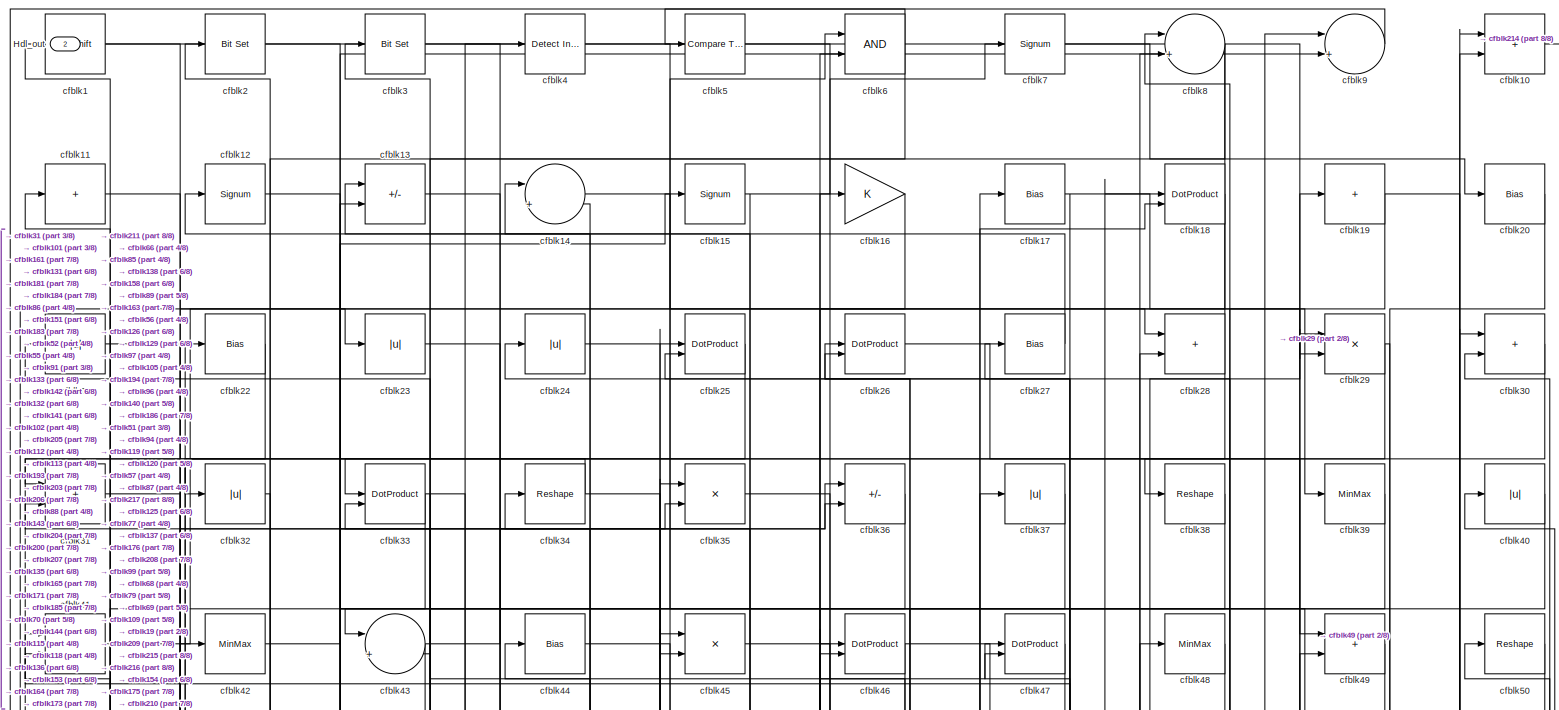
[diagram: root canvas - part 1/8, full width, top band]
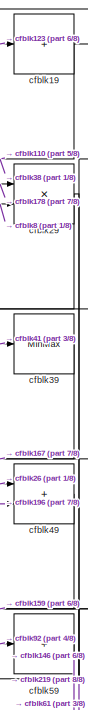
[diagram: root canvas - part 2/8, top right region]
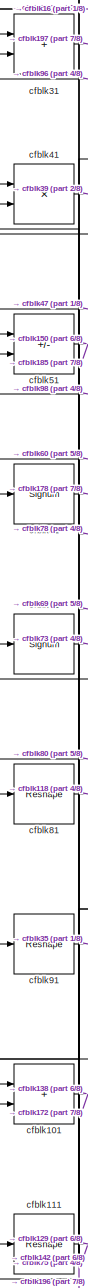
[diagram: root canvas - part 3/8, middle left region]
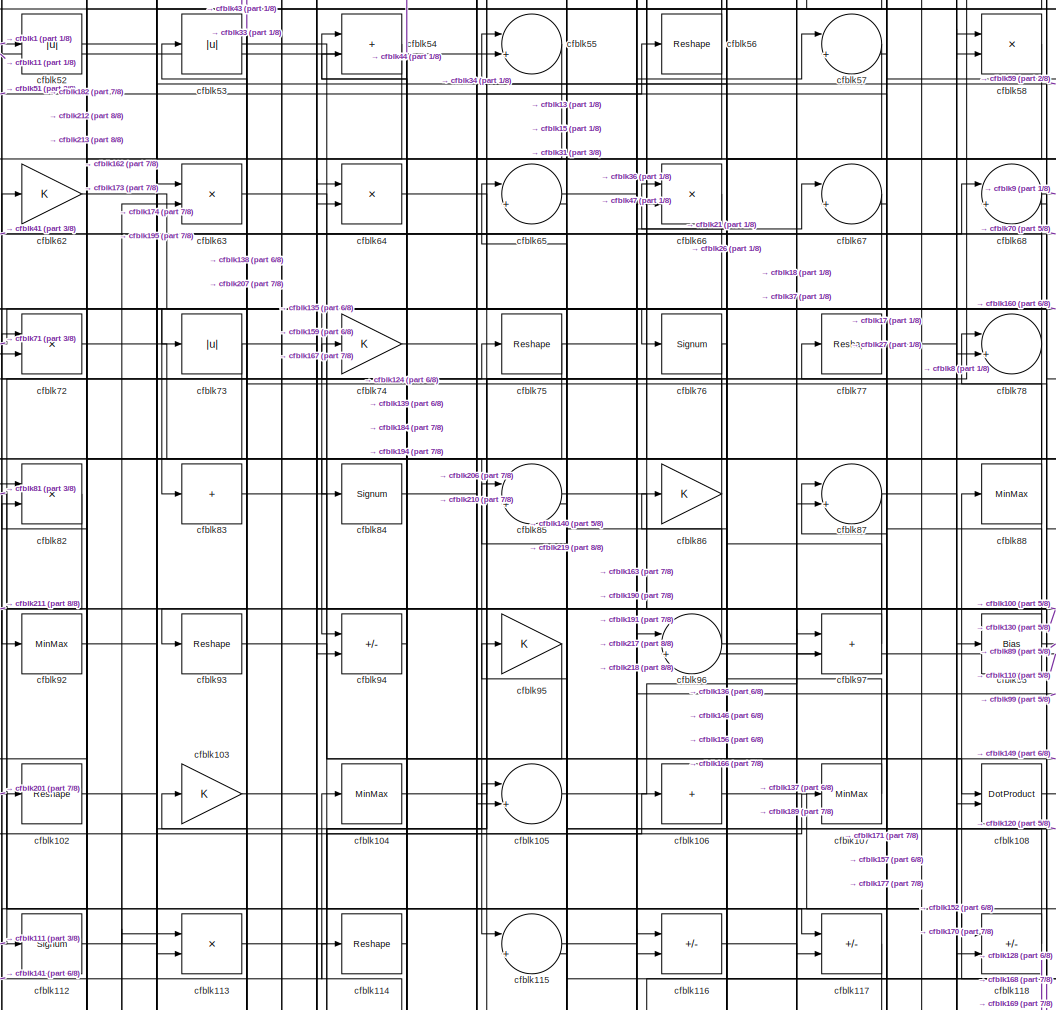
[diagram: root canvas - part 4/8, central region]
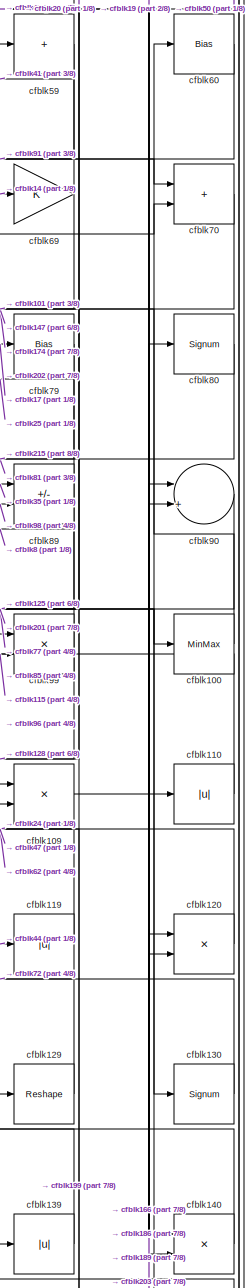
[diagram: root canvas - part 5/8, middle right region]
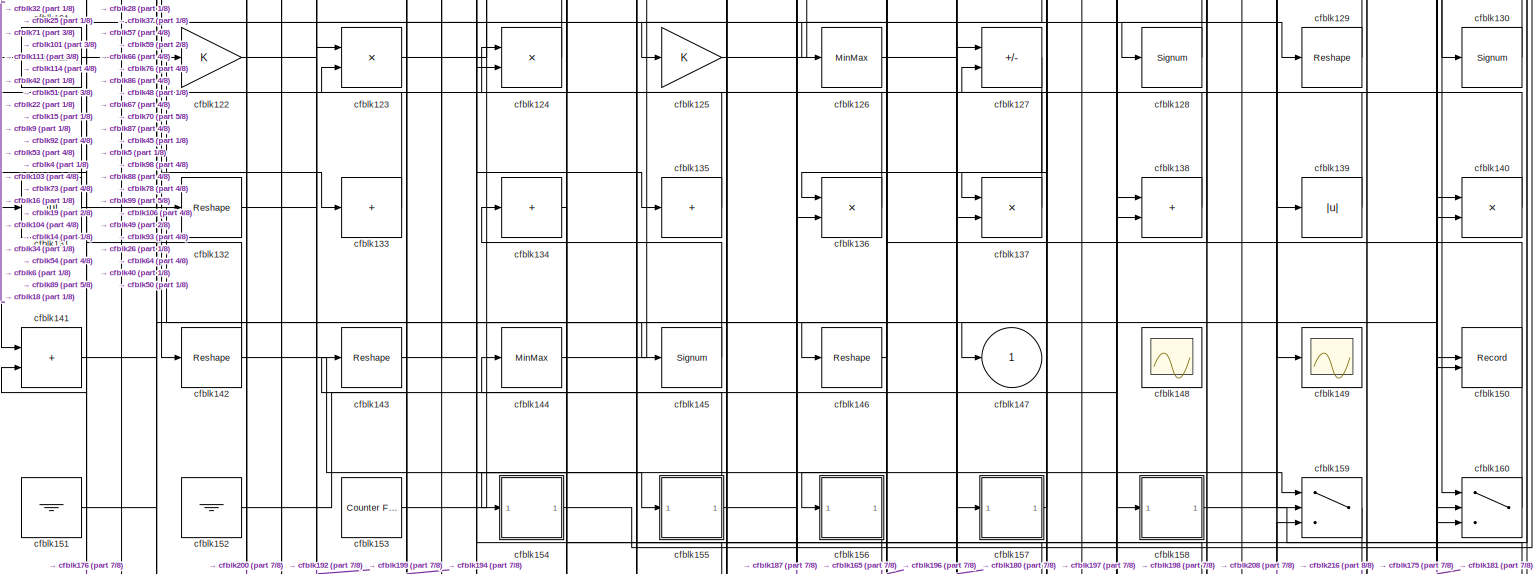
[diagram: root canvas - part 6/8, full width, middle band]
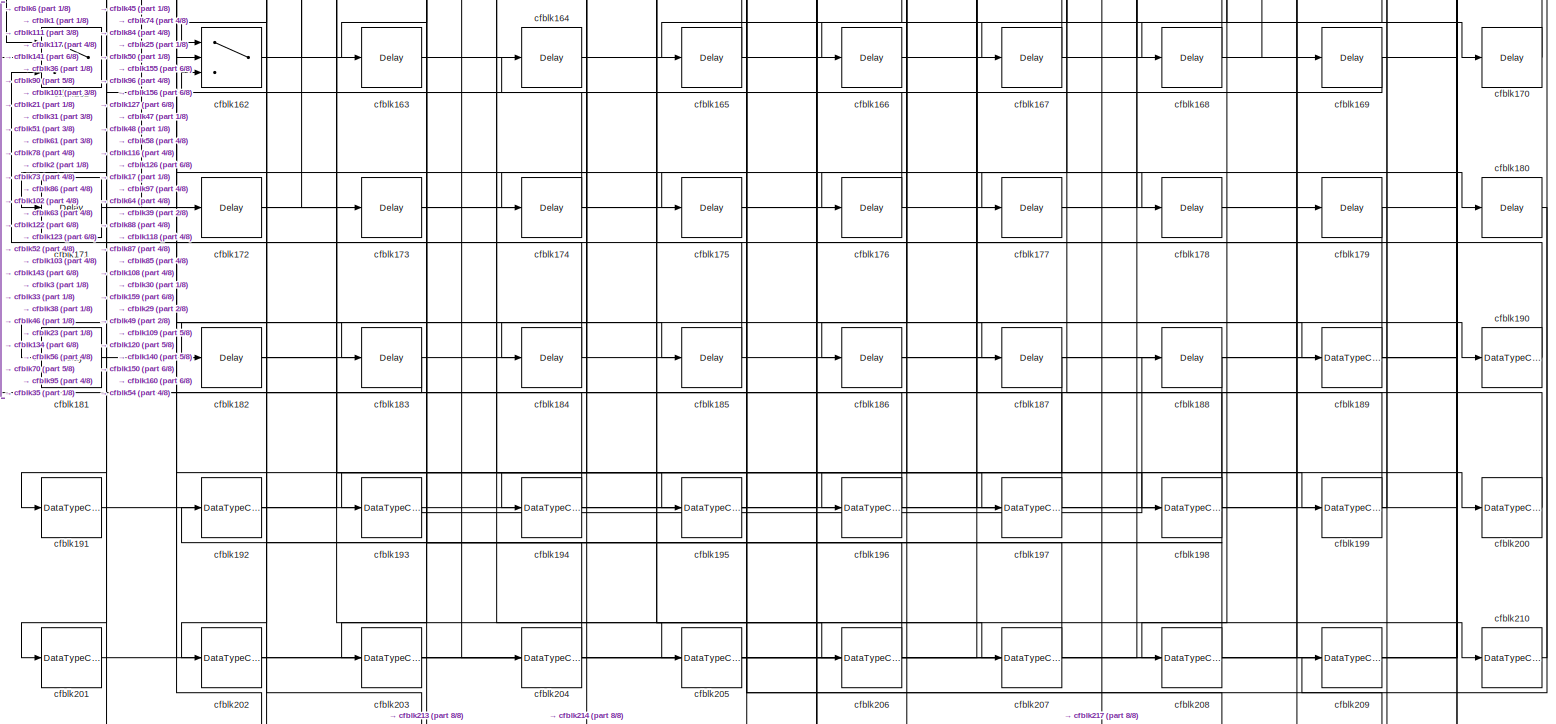
[diagram: root canvas - part 7/8, full width, bottom band]
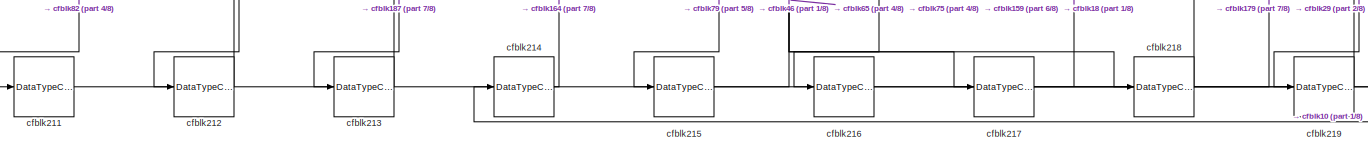
[diagram: root canvas - part 8/8, full width, bottom band]
MODEL slx_77c5e68a5595
KIND model
CONFIG AbsTol = auto
CONFIG EnableMultiTasking = off
CONFIG FixedStep = auto
CONFIG MaxStep = auto
CONFIG MinStep = auto
CONFIG RelTol = 1e-3
CONFIG SampleTimeConstraint = Unconstrained
CONFIG SolverName = VariableStepAuto
CONFIG StartTime = 0.0
CONFIG StopTime = 10.0
BLOCK [Outport] Hdl_out
  OutDataTypeStr = uint8
  Port = 2
BLOCK [Reference] cfblk1  REF=hdlsllib/Logic and Bit
Operations/Bit Shift
  SourceBlock = hdlsllib/Logic and Bit\nOperations/Bit Shift
  SourceType = Bit Shift
BLOCK [Sum] cfblk10
  IconShape = rectangular
  OutDataTypeStr = uint8
BLOCK [MinMax] cfblk100
  OutDataTypeStr = uint8
BLOCK [Sum] cfblk101
  IconShape = rectangular
  OutDataTypeStr = uint8
BLOCK [Reshape] cfblk102
BLOCK [Gain] cfblk103
  OutDataTypeStr = uint8
BLOCK [MinMax] cfblk104
  OutDataTypeStr = uint8
BLOCK [Sum] cfblk105
  Inputs = |++
  OutDataTypeStr = uint8
BLOCK [Sum] cfblk106
  IconShape = rectangular
  Inputs = +
  OutDataTypeStr = uint8
BLOCK [MinMax] cfblk107
  OutDataTypeStr = uint8
BLOCK [DotProduct] cfblk108
  OutDataTypeStr = uint8
BLOCK [Product] cfblk109
  Inputs = */
  OutDataTypeStr = uint8
  RndMeth = Zero
  SaturateOnIntegerOverflow = on
BLOCK [Sum] cfblk11
  IconShape = rectangular
  Inputs = +
  OutDataTypeStr = uint8
BLOCK [Abs] cfblk110
  OutDataTypeStr = uint8
  SaturateOnIntegerOverflow = off
BLOCK [Reshape] cfblk111
BLOCK [Signum] cfblk112
BLOCK [Product] cfblk113
  Inputs = */
  OutDataTypeStr = uint8
  RndMeth = Zero
  SaturateOnIntegerOverflow = on
BLOCK [Reshape] cfblk114
BLOCK [Sum] cfblk115
  Inputs = |++
  OutDataTypeStr = uint8
BLOCK [Sum] cfblk116
  IconShape = rectangular
  Inputs = +-
  OutDataTypeStr = uint8
BLOCK [Sum] cfblk117
  IconShape = rectangular
  Inputs = +-
  OutDataTypeStr = uint8
BLOCK [Sum] cfblk118
  IconShape = rectangular
  Inputs = +-
  OutDataTypeStr = uint8
BLOCK [Abs] cfblk119
  OutDataTypeStr = uint8
  SaturateOnIntegerOverflow = off
BLOCK [Signum] cfblk12
BLOCK [Product] cfblk120
  Inputs = */
  OutDataTypeStr = uint8
  RndMeth = Zero
  SaturateOnIntegerOverflow = on
BLOCK [MinMax] cfblk121
  OutDataTypeStr = uint8
BLOCK [Gain] cfblk122
  OutDataTypeStr = uint8
BLOCK [Product] cfblk123
  Inputs = */
  OutDataTypeStr = uint8
  RndMeth = Zero
  SaturateOnIntegerOverflow = on
BLOCK [Product] cfblk124
  Inputs = */
  OutDataTypeStr = uint8
  RndMeth = Zero
  SaturateOnIntegerOverflow = on
BLOCK [Gain] cfblk125
  OutDataTypeStr = uint8
BLOCK [MinMax] cfblk126
  OutDataTypeStr = uint8
BLOCK [Sum] cfblk127
  IconShape = rectangular
  Inputs = +-
  OutDataTypeStr = uint8
BLOCK [Signum] cfblk128
BLOCK [Reshape] cfblk129
BLOCK [Sum] cfblk13
  IconShape = rectangular
  Inputs = +-
  OutDataTypeStr = uint8
BLOCK [Signum] cfblk130
BLOCK [Abs] cfblk131
  OutDataTypeStr = uint8
  SaturateOnIntegerOverflow = off
BLOCK [Reshape] cfblk132
BLOCK [Sum] cfblk133
  IconShape = rectangular
  Inputs = +
  OutDataTypeStr = uint8
BLOCK [Sum] cfblk134
  IconShape = rectangular
  Inputs = +
  OutDataTypeStr = uint8
BLOCK [Sum] cfblk135
  IconShape = rectangular
  Inputs = +
  OutDataTypeStr = uint8
BLOCK [Product] cfblk136
  Inputs = */
  OutDataTypeStr = uint8
  RndMeth = Zero
  SaturateOnIntegerOverflow = on
BLOCK [Product] cfblk137
  Inputs = */
  OutDataTypeStr = uint8
  RndMeth = Zero
  SaturateOnIntegerOverflow = on
BLOCK [Sum] cfblk138
  IconShape = rectangular
  OutDataTypeStr = uint8
BLOCK [Abs] cfblk139
  OutDataTypeStr = uint8
  SaturateOnIntegerOverflow = off
BLOCK [Sum] cfblk14
  Inputs = |++
  OutDataTypeStr = uint8
BLOCK [Product] cfblk140
  Inputs = */
  OutDataTypeStr = uint8
  RndMeth = Zero
  SaturateOnIntegerOverflow = on
BLOCK [Sum] cfblk141
  IconShape = rectangular
  OutDataTypeStr = uint8
BLOCK [Reshape] cfblk142
BLOCK [Reshape] cfblk143
BLOCK [MinMax] cfblk144
  OutDataTypeStr = uint8
BLOCK [Signum] cfblk145
BLOCK [Reshape] cfblk146
BLOCK [Outport] cfblk147
  OutDataTypeStr = uint8
  VectorParamsAs1DForOutWhenUnconnected = off
BLOCK [Scope] cfblk148
  Floating = on
  NumInputPorts = 1
  ScopeSpecificationString = Simulink.scopes.TimeScopeBlockCfg('CurrentConfiguration', extmgr.ConfigurationSet(extmgr.Configuration('Core','General UI',true,'FigureColor',[0.156862745098039 0.156862745098039 0.156862745098039]),extmgr.Configuration('Core','Source UI',true),extmgr.Configuration('Sources','WiredSimulink',true,'DataLoggingVariableName','ScopeData1','DataLoggingSaveFormat','StructureWithTime','DataLoggingLimitDat...<+2713ch>
BLOCK [Scope] cfblk149
  Floating = off
  NumInputPorts = 1
  ScopeSpecificationString = Simulink.scopes.TimeScopeBlockCfg('CurrentConfiguration', extmgr.ConfigurationSet(extmgr.Configuration('Core','General UI',true),extmgr.Configuration('Core','Source UI',true),extmgr.Configuration('Sources','WiredSimulink',true,'DataLoggingVariableName','ScopeData2','DataLoggingSaveFormat','Array','DataLoggingLimitDataPoints',true,'DataLoggingDecimation','1'),extmgr.Configuration('Visuals','Time Do...<+868ch>
BLOCK [Signum] cfblk15
BLOCK [Record] cfblk150
  CompatibilityTag = XY
  FileSettingsInternal = {"entries":[{"content":{"excelSettings":{"content":{},"type":"Streamout.ExcelSettings"}},"type":"Streamout.FileSettingStorage","uuid":""}],"packageUris":["http:\/\/schema.mathworks.com\/mf0\/streamout_blocks\/R2020a"],"version":"1.0"}
  Layout = [1 1]
  SignalsInternal = {"entries":[{"content":{"signals":[{"content":{"blockPath":[],"dimensions":[1],"domain":"","lineColor":"#a2142f","plots":[1],"port":1,"signalID":42183,"signalName":"cfblk194"},"type":"RecordBlkView.Signal","uuid":""},{"content":{"blockPath":[],"dimensions":[1],"domain":"","lineColor":"#139fff","plots":[1],"port":2,"signalID":42186,"signalName":"cfblk51"},"type":"RecordBlkView.Signal","uuid":""}]},...<+143ch>
  VisualizationBindings = {"xyplotplugin":{"info":[{"series":[{"bindingParametersList":[{"parameter":"X-Axis","signalID":42183,"signalName":"cfblk194"},{"parameter":"Y-Axis","signalID":42186,"signalName":"cfblk51"}],"seriesID":2953}],"subplotID":1}]}}
  st = -1
BLOCK [Ground] cfblk151
BLOCK [Ground] cfblk152
BLOCK [Reference] cfblk153  REF=hdlsllib/Sources/Counter
Free-Running
  SourceBlock = hdlsllib/Sources/Counter\nFree-Running
  SourceType = Counter Free-Running
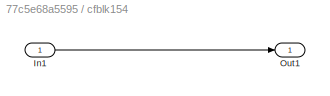
BLOCK [SubSystem] cfblk154
  LibrarySourceBlock = hdlsllib/Ports &\nSubsystems/Subsystem
BLOCK [Inport] cfblk154/In1
BLOCK [Outport] cfblk154/Out1
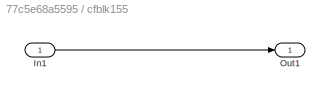
BLOCK [SubSystem] cfblk155
  LibrarySourceBlock = hdlsllib/Ports &\nSubsystems/Subsystem
BLOCK [Inport] cfblk155/In1
BLOCK [Outport] cfblk155/Out1
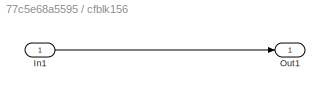
BLOCK [SubSystem] cfblk156
  LibrarySourceBlock = hdlsllib/Ports &\nSubsystems/Subsystem
BLOCK [Inport] cfblk156/In1
BLOCK [Outport] cfblk156/Out1
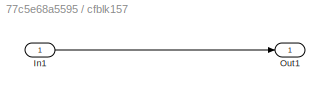
BLOCK [SubSystem] cfblk157
  LibrarySourceBlock = hdlsllib/Ports &\nSubsystems/Subsystem
BLOCK [Inport] cfblk157/In1
BLOCK [Outport] cfblk157/Out1
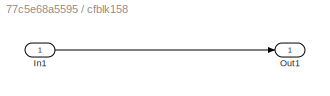
BLOCK [SubSystem] cfblk158
  LibrarySourceBlock = hdlsllib/Ports &\nSubsystems/Subsystem
BLOCK [Inport] cfblk158/In1
BLOCK [Outport] cfblk158/Out1
BLOCK [Switch] cfblk159
  InputSameDT = off
  OutDataTypeStr = uint8
  SaturateOnIntegerOverflow = off
BLOCK [Gain] cfblk16
  OutDataTypeStr = uint8
BLOCK [Switch] cfblk160
  InputSameDT = off
  OutDataTypeStr = uint8
  SaturateOnIntegerOverflow = off
BLOCK [Switch] cfblk161
  InputSameDT = off
  OutDataTypeStr = uint8
  SaturateOnIntegerOverflow = off
BLOCK [Switch] cfblk162
  InputSameDT = off
  OutDataTypeStr = uint8
  SaturateOnIntegerOverflow = off
BLOCK [Delay] cfblk163
  InputPortMap = u0
  SampleTime = 1
BLOCK [Delay] cfblk164
  InputPortMap = u0
  SampleTime = 1
BLOCK [Delay] cfblk165
  InputPortMap = u0
  SampleTime = 1
BLOCK [Delay] cfblk166
  InputPortMap = u0
  SampleTime = 1
BLOCK [Delay] cfblk167
  InputPortMap = u0
  SampleTime = 1
BLOCK [Delay] cfblk168
  InputPortMap = u0
  SampleTime = 1
BLOCK [Delay] cfblk169
  InputPortMap = u0
  SampleTime = 1
BLOCK [Bias] cfblk17
  Bias = 0.0
  SaturateOnIntegerOverflow = off
BLOCK [Delay] cfblk170
  InputPortMap = u0
  SampleTime = 1
BLOCK [Delay] cfblk171
  InputPortMap = u0
  SampleTime = 1
BLOCK [Delay] cfblk172
  InputPortMap = u0
  SampleTime = 1
BLOCK [Delay] cfblk173
  InputPortMap = u0
  SampleTime = 1
BLOCK [Delay] cfblk174
  InputPortMap = u0
  SampleTime = 1
BLOCK [Delay] cfblk175
  InputPortMap = u0
  SampleTime = 1
BLOCK [Delay] cfblk176
  InputPortMap = u0
  SampleTime = 1
BLOCK [Delay] cfblk177
  InputPortMap = u0
  SampleTime = 1
BLOCK [Delay] cfblk178
  InputPortMap = u0
  SampleTime = 1
BLOCK [Delay] cfblk179
  InputPortMap = u0
  SampleTime = 1
BLOCK [DotProduct] cfblk18
  OutDataTypeStr = uint8
BLOCK [Delay] cfblk180
  InputPortMap = u0
  SampleTime = 1
BLOCK [Delay] cfblk181
  InputPortMap = u0
  SampleTime = 1
BLOCK [Delay] cfblk182
  InputPortMap = u0
  SampleTime = 1
BLOCK [Delay] cfblk183
  InputPortMap = u0
  SampleTime = 1
BLOCK [Delay] cfblk184
  InputPortMap = u0
  SampleTime = 1
BLOCK [Delay] cfblk185
  InputPortMap = u0
  SampleTime = 1
BLOCK [Delay] cfblk186
  InputPortMap = u0
  SampleTime = 1
BLOCK [Delay] cfblk187
  InputPortMap = u0
  SampleTime = 1
BLOCK [Delay] cfblk188
  InputPortMap = u0
  SampleTime = 1
BLOCK [DataTypeConversion] cfblk189
  OutDataTypeStr = uint8
  RndMeth = Floor
  SaturateOnIntegerOverflow = off
BLOCK [Sum] cfblk19
  IconShape = rectangular
  Inputs = +
  OutDataTypeStr = uint8
BLOCK [DataTypeConversion] cfblk190
  OutDataTypeStr = uint8
  RndMeth = Floor
  SaturateOnIntegerOverflow = off
BLOCK [DataTypeConversion] cfblk191
  OutDataTypeStr = uint8
  RndMeth = Floor
  SaturateOnIntegerOverflow = off
BLOCK [DataTypeConversion] cfblk192
  OutDataTypeStr = uint8
  RndMeth = Floor
  SaturateOnIntegerOverflow = off
BLOCK [DataTypeConversion] cfblk193
  OutDataTypeStr = uint8
  RndMeth = Floor
  SaturateOnIntegerOverflow = off
BLOCK [DataTypeConversion] cfblk194
  OutDataTypeStr = uint8
  RndMeth = Floor
  SaturateOnIntegerOverflow = off
BLOCK [DataTypeConversion] cfblk195
  OutDataTypeStr = uint8
  RndMeth = Floor
  SaturateOnIntegerOverflow = off
BLOCK [DataTypeConversion] cfblk196
  OutDataTypeStr = uint8
  RndMeth = Floor
  SaturateOnIntegerOverflow = off
BLOCK [DataTypeConversion] cfblk197
  OutDataTypeStr = uint8
  RndMeth = Floor
  SaturateOnIntegerOverflow = off
BLOCK [DataTypeConversion] cfblk198
  OutDataTypeStr = uint8
  RndMeth = Floor
  SaturateOnIntegerOverflow = off
BLOCK [DataTypeConversion] cfblk199
  OutDataTypeStr = uint8
  RndMeth = Floor
  SaturateOnIntegerOverflow = off
BLOCK [Reference] cfblk2  REF=simulink/Logic and Bit
Operations/Bit Set
  LibrarySourceBlock = hdlsllib/Logic and Bit\nOperations/Bit Set
  SourceBlock = simulink/Logic and Bit\nOperations/Bit Set
  SourceType = Bit Set
BLOCK [Bias] cfblk20
  Bias = 0.0
  SaturateOnIntegerOverflow = off
BLOCK [DataTypeConversion] cfblk200
  OutDataTypeStr = uint8
  RndMeth = Floor
  SaturateOnIntegerOverflow = off
BLOCK [DataTypeConversion] cfblk201
  OutDataTypeStr = uint8
  RndMeth = Floor
  SaturateOnIntegerOverflow = off
BLOCK [DataTypeConversion] cfblk202
  OutDataTypeStr = uint8
  RndMeth = Floor
  SaturateOnIntegerOverflow = off
BLOCK [DataTypeConversion] cfblk203
  OutDataTypeStr = uint8
  RndMeth = Floor
  SaturateOnIntegerOverflow = off
BLOCK [DataTypeConversion] cfblk204
  OutDataTypeStr = uint8
  RndMeth = Floor
  SaturateOnIntegerOverflow = off
BLOCK [DataTypeConversion] cfblk205
  OutDataTypeStr = uint8
  RndMeth = Floor
  SaturateOnIntegerOverflow = off
BLOCK [DataTypeConversion] cfblk206
  OutDataTypeStr = uint8
  RndMeth = Floor
  SaturateOnIntegerOverflow = off
BLOCK [DataTypeConversion] cfblk207
  OutDataTypeStr = uint8
  RndMeth = Floor
  SaturateOnIntegerOverflow = off
BLOCK [DataTypeConversion] cfblk208
  OutDataTypeStr = uint8
  RndMeth = Floor
  SaturateOnIntegerOverflow = off
BLOCK [DataTypeConversion] cfblk209
  OutDataTypeStr = uint8
  RndMeth = Floor
  SaturateOnIntegerOverflow = off
BLOCK [Abs] cfblk21
  OutDataTypeStr = uint8
  SaturateOnIntegerOverflow = off
BLOCK [DataTypeConversion] cfblk210
  OutDataTypeStr = uint8
  RndMeth = Floor
  SaturateOnIntegerOverflow = off
BLOCK [DataTypeConversion] cfblk211
  OutDataTypeStr = uint8
  RndMeth = Floor
  SaturateOnIntegerOverflow = off
BLOCK [DataTypeConversion] cfblk212
  OutDataTypeStr = uint8
  RndMeth = Floor
  SaturateOnIntegerOverflow = off
BLOCK [DataTypeConversion] cfblk213
  OutDataTypeStr = uint8
  RndMeth = Floor
  SaturateOnIntegerOverflow = off
BLOCK [DataTypeConversion] cfblk214
  OutDataTypeStr = uint8
  RndMeth = Floor
  SaturateOnIntegerOverflow = off
BLOCK [DataTypeConversion] cfblk215
  OutDataTypeStr = uint8
  RndMeth = Floor
  SaturateOnIntegerOverflow = off
BLOCK [DataTypeConversion] cfblk216
  OutDataTypeStr = uint8
  RndMeth = Floor
  SaturateOnIntegerOverflow = off
BLOCK [DataTypeConversion] cfblk217
  OutDataTypeStr = uint8
  RndMeth = Floor
  SaturateOnIntegerOverflow = off
BLOCK [DataTypeConversion] cfblk218
  OutDataTypeStr = uint8
  RndMeth = Floor
  SaturateOnIntegerOverflow = off
BLOCK [DataTypeConversion] cfblk219
  OutDataTypeStr = uint8
  RndMeth = Floor
  SaturateOnIntegerOverflow = off
BLOCK [Bias] cfblk22
  Bias = 0.0
  SaturateOnIntegerOverflow = off
BLOCK [Abs] cfblk23
  OutDataTypeStr = uint8
  SaturateOnIntegerOverflow = off
BLOCK [Abs] cfblk24
  OutDataTypeStr = uint8
  SaturateOnIntegerOverflow = off
BLOCK [DotProduct] cfblk25
  OutDataTypeStr = uint8
BLOCK [DotProduct] cfblk26
  OutDataTypeStr = uint8
BLOCK [Bias] cfblk27
  Bias = 0.0
  SaturateOnIntegerOverflow = off
BLOCK [Sum] cfblk28
  IconShape = rectangular
  OutDataTypeStr = uint8
BLOCK [Product] cfblk29
  Inputs = */
  OutDataTypeStr = uint8
  RndMeth = Zero
  SaturateOnIntegerOverflow = on
BLOCK [Reference] cfblk3  REF=simulink/Logic and Bit
Operations/Bit Set
  LibrarySourceBlock = hdlsllib/Logic and Bit\nOperations/Bit Set
  SourceBlock = simulink/Logic and Bit\nOperations/Bit Set
  SourceType = Bit Set
BLOCK [Sum] cfblk30
  IconShape = rectangular
  OutDataTypeStr = uint8
BLOCK [Sum] cfblk31
  IconShape = rectangular
  OutDataTypeStr = uint8
BLOCK [Abs] cfblk32
  OutDataTypeStr = uint8
  SaturateOnIntegerOverflow = off
BLOCK [DotProduct] cfblk33
  OutDataTypeStr = uint8
BLOCK [Reshape] cfblk34
BLOCK [Product] cfblk35
  Inputs = */
  OutDataTypeStr = uint8
  RndMeth = Zero
  SaturateOnIntegerOverflow = on
BLOCK [Sum] cfblk36
  IconShape = rectangular
  Inputs = +-
  OutDataTypeStr = uint8
BLOCK [Abs] cfblk37
  OutDataTypeStr = uint8
  SaturateOnIntegerOverflow = off
BLOCK [Reshape] cfblk38
BLOCK [MinMax] cfblk39
  OutDataTypeStr = uint8
BLOCK [Reference] cfblk4  REF=simulink/Logic and Bit
Operations/Detect
Increase
  LibrarySourceBlock = hdlsllib/Logic and Bit\nOperations/Detect\nIncrease
  SourceBlock = simulink/Logic and Bit\nOperations/Detect\nIncrease
  SourceType = Detect Increase
BLOCK [Abs] cfblk40
  OutDataTypeStr = uint8
  SaturateOnIntegerOverflow = off
BLOCK [Product] cfblk41
  Inputs = */
  OutDataTypeStr = uint8
  RndMeth = Zero
  SaturateOnIntegerOverflow = on
BLOCK [MinMax] cfblk42
  OutDataTypeStr = uint8
BLOCK [Sum] cfblk43
  Inputs = |++
  OutDataTypeStr = uint8
BLOCK [Bias] cfblk44
  Bias = 0.0
  SaturateOnIntegerOverflow = off
BLOCK [Product] cfblk45
  Inputs = */
  OutDataTypeStr = uint8
  RndMeth = Zero
  SaturateOnIntegerOverflow = on
BLOCK [DotProduct] cfblk46
  OutDataTypeStr = uint8
BLOCK [DotProduct] cfblk47
  OutDataTypeStr = uint8
BLOCK [MinMax] cfblk48
  OutDataTypeStr = uint8
BLOCK [Sum] cfblk49
  IconShape = rectangular
  OutDataTypeStr = uint8
BLOCK [Reference] cfblk5  REF=hdlsllib/Logic and Bit
Operations/Compare
To Zero
  SourceBlock = hdlsllib/Logic and Bit\nOperations/Compare\nTo Zero
  SourceType = Compare To Zero
BLOCK [Reshape] cfblk50
BLOCK [Sum] cfblk51
  IconShape = rectangular
  Inputs = +-
  OutDataTypeStr = uint8
BLOCK [Abs] cfblk52
  OutDataTypeStr = uint8
  SaturateOnIntegerOverflow = off
BLOCK [Abs] cfblk53
  OutDataTypeStr = uint8
  SaturateOnIntegerOverflow = off
BLOCK [Sum] cfblk54
  IconShape = rectangular
  OutDataTypeStr = uint8
BLOCK [Sum] cfblk55
  Inputs = |++
  OutDataTypeStr = uint8
BLOCK [Reshape] cfblk56
BLOCK [Sum] cfblk57
  Inputs = |++
  OutDataTypeStr = uint8
BLOCK [Product] cfblk58
  Inputs = */
  OutDataTypeStr = uint8
  RndMeth = Zero
  SaturateOnIntegerOverflow = on
BLOCK [Sum] cfblk59
  IconShape = rectangular
  Inputs = +
  OutDataTypeStr = uint8
BLOCK [Logic] cfblk6
  AllPortsSameDT = off
  OutDataTypeStr = boolean
BLOCK [Bias] cfblk60
  Bias = 0.0
  SaturateOnIntegerOverflow = off
BLOCK [Signum] cfblk61
BLOCK [Gain] cfblk62
  OutDataTypeStr = uint8
BLOCK [Product] cfblk63
  Inputs = */
  OutDataTypeStr = uint8
  RndMeth = Zero
  SaturateOnIntegerOverflow = on
BLOCK [Product] cfblk64
  Inputs = */
  OutDataTypeStr = uint8
  RndMeth = Zero
  SaturateOnIntegerOverflow = on
BLOCK [Sum] cfblk65
  Inputs = |++
  OutDataTypeStr = uint8
BLOCK [Product] cfblk66
  Inputs = */
  OutDataTypeStr = uint8
  RndMeth = Zero
  SaturateOnIntegerOverflow = on
BLOCK [Sum] cfblk67
  Inputs = |++
  OutDataTypeStr = uint8
BLOCK [Sum] cfblk68
  Inputs = |++
  OutDataTypeStr = uint8
BLOCK [Gain] cfblk69
  OutDataTypeStr = uint8
BLOCK [Signum] cfblk7
BLOCK [Sum] cfblk70
  IconShape = rectangular
  OutDataTypeStr = uint8
BLOCK [Signum] cfblk71
BLOCK [Product] cfblk72
  Inputs = */
  OutDataTypeStr = uint8
  RndMeth = Zero
  SaturateOnIntegerOverflow = on
BLOCK [Abs] cfblk73
  OutDataTypeStr = uint8
  SaturateOnIntegerOverflow = off
BLOCK [Gain] cfblk74
  OutDataTypeStr = uint8
BLOCK [Reshape] cfblk75
BLOCK [Signum] cfblk76
BLOCK [Reshape] cfblk77
BLOCK [Sum] cfblk78
  Inputs = |++
  OutDataTypeStr = uint8
BLOCK [Bias] cfblk79
  Bias = 0.0
  SaturateOnIntegerOverflow = off
BLOCK [Sum] cfblk8
  Inputs = |++
  OutDataTypeStr = uint8
BLOCK [Signum] cfblk80
BLOCK [Reshape] cfblk81
BLOCK [Product] cfblk82
  Inputs = */
  OutDataTypeStr = uint8
  RndMeth = Zero
  SaturateOnIntegerOverflow = on
BLOCK [Sum] cfblk83
  IconShape = rectangular
  Inputs = +
  OutDataTypeStr = uint8
BLOCK [Signum] cfblk84
BLOCK [Sum] cfblk85
  Inputs = |++
  OutDataTypeStr = uint8
BLOCK [Gain] cfblk86
  OutDataTypeStr = uint8
BLOCK [Sum] cfblk87
  Inputs = |++
  OutDataTypeStr = uint8
BLOCK [MinMax] cfblk88
  OutDataTypeStr = uint8
BLOCK [Sum] cfblk89
  IconShape = rectangular
  Inputs = +-
  OutDataTypeStr = uint8
BLOCK [Sum] cfblk9
  Inputs = |++
  OutDataTypeStr = uint8
BLOCK [Sum] cfblk90
  Inputs = |++
  OutDataTypeStr = uint8
BLOCK [Reshape] cfblk91
BLOCK [MinMax] cfblk92
  OutDataTypeStr = uint8
BLOCK [Reshape] cfblk93
BLOCK [Sum] cfblk94
  IconShape = rectangular
  Inputs = +-
  OutDataTypeStr = uint8
BLOCK [Gain] cfblk95
  OutDataTypeStr = uint8
BLOCK [Sum] cfblk96
  Inputs = |++
  OutDataTypeStr = uint8
BLOCK [Sum] cfblk97
  IconShape = rectangular
  OutDataTypeStr = uint8
BLOCK [Bias] cfblk98
  Bias = 0.0
  SaturateOnIntegerOverflow = off
BLOCK [Product] cfblk99
  Inputs = */
  OutDataTypeStr = uint8
  RndMeth = Zero
  SaturateOnIntegerOverflow = on
LINE cfblk100:1 -> cfblk60:1
NET cfblk101:1 -> cfblk138:2, cfblk172:1
NET cfblk102:1 -> cfblk13:2, cfblk173:1
LINE cfblk103:1 -> cfblk159:1
LINE cfblk104:1 -> cfblk58:1
LINE cfblk105:1 -> cfblk37:1
LINE cfblk106:1 -> cfblk139:1
LINE cfblk107:1 -> cfblk55:1
NET cfblk108:1 -> cfblk168:1, cfblk169:1, cfblk68:2
LINE cfblk109:1 -> cfblk80:1
LINE cfblk10:1 -> cfblk214:1
LINE cfblk110:1 -> cfblk96:2
NET cfblk111:1 -> cfblk129:1, cfblk75:1
NET cfblk112:1 -> cfblk105:1, cfblk113:1
LINE cfblk113:1 -> cfblk107:1
LINE cfblk114:1 -> cfblk74:1
NET cfblk115:1 -> cfblk57:1, cfblk99:2
LINE cfblk116:1 -> cfblk189:1
LINE cfblk117:1 -> cfblk171:1
LINE cfblk118:1 -> cfblk13:1
LINE cfblk119:1 -> cfblk24:1
NET cfblk11:1 -> cfblk23:1, cfblk55:2
NET cfblk120:1 -> cfblk47:2, cfblk62:1
LINE cfblk121:1 -> cfblk133:1
LINE cfblk122:1 -> cfblk199:1
LINE cfblk123:1 -> cfblk19:1
LINE cfblk124:1 -> cfblk104:1
LINE cfblk125:1 -> cfblk28:2
LINE cfblk126:1 -> cfblk180:1
LINE cfblk127:1 -> cfblk196:1
LINE cfblk128:1 -> cfblk88:1
LINE cfblk129:1 -> cfblk26:1
LINE cfblk12:1 -> cfblk45:2
NET cfblk130:1 -> cfblk72:1, cfblk77:1
NET cfblk131:1 -> cfblk121:1, cfblk157:1
LINE cfblk132:1 -> cfblk15:1
LINE cfblk133:1 -> cfblk22:1
LINE cfblk134:1 -> cfblk154:1
LINE cfblk135:1 -> cfblk14:2
LINE cfblk136:1 -> cfblk34:1
LINE cfblk137:1 -> cfblk14:1
LINE cfblk138:1 -> cfblk53:1
LINE cfblk139:1 -> cfblk54:1
LINE cfblk13:1 -> cfblk97:2
LINE cfblk140:1 -> cfblk85:2
NET cfblk141:1 -> cfblk106:1, cfblk114:1
NET cfblk142:1 -> cfblk155:1, cfblk71:1, cfblk9:2
NET cfblk143:1 -> cfblk145:1, cfblk4:1
LINE cfblk144:1 -> cfblk6:1
LINE cfblk145:1 -> cfblk124:1
LINE cfblk146:1 -> cfblk66:1
LINE cfblk14:1 -> cfblk69:1
LINE cfblk151:1 -> cfblk42:1
LINE cfblk152:1 -> cfblk98:1
LINE cfblk153:1 -> cfblk16:1
LINE cfblk154/In1:1 -> cfblk154/Out1:1
LINE cfblk154:1 -> cfblk40:1
LINE cfblk155/In1:1 -> cfblk155/Out1:1
NET cfblk155:1 -> cfblk144:1, cfblk187:1
LINE cfblk156/In1:1 -> cfblk156/Out1:1
LINE cfblk156:1 -> cfblk165:1
LINE cfblk157/In1:1 -> cfblk157/Out1:1
LINE cfblk157:1 -> cfblk87:1
LINE cfblk158/In1:1 -> cfblk158/Out1:1
LINE cfblk158:1 -> cfblk50:1
LINE cfblk159:1 -> cfblk216:1
NET cfblk15:1 -> cfblk115:2, cfblk7:1
NET cfblk160:1 -> cfblk67:2, cfblk78:1, cfblk86:1
LINE cfblk161:1 -> cfblk191:1
NET cfblk162:1 -> cfblk118:2, cfblk63:2
LINE cfblk163:1 -> cfblk96:1
LINE cfblk164:1 -> cfblk46:2
LINE cfblk165:1 -> cfblk25:1
LINE cfblk166:1 -> cfblk120:1
LINE cfblk167:1 -> cfblk64:1
LINE cfblk168:1 -> cfblk85:1
LINE cfblk169:1 -> cfblk162:3
NET cfblk16:1 -> cfblk101:2, cfblk31:1
LINE cfblk170:1 -> cfblk54:2
LINE cfblk171:1 -> cfblk45:1
LINE cfblk172:1 -> cfblk190:1
LINE cfblk173:1 -> cfblk6:2
LINE cfblk174:1 -> cfblk63:1
LINE cfblk175:1 -> cfblk160:2
LINE cfblk176:1 -> cfblk141:2
LINE cfblk177:1 -> cfblk108:2
LINE cfblk178:1 -> cfblk29:1
LINE cfblk179:1 -> cfblk161:3
NET cfblk17:1 -> cfblk57:2, cfblk79:1
LINE cfblk180:1 -> cfblk209:1
LINE cfblk181:1 -> cfblk160:3
LINE cfblk182:1 -> cfblk198:1
LINE cfblk183:1 -> cfblk161:2
LINE cfblk184:1 -> cfblk1:1
LINE cfblk185:1 -> cfblk35:1
LINE cfblk186:1 -> cfblk140:2
LINE cfblk187:1 -> cfblk213:1
LINE cfblk188:1 -> cfblk192:1
NET cfblk189:1 -> cfblk120:2, cfblk97:1
LINE cfblk18:1 -> cfblk136:2
LINE cfblk190:1 -> cfblk116:1
LINE cfblk191:1 -> cfblk116:2
LINE cfblk192:1 -> cfblk123:1
LINE cfblk193:1 -> cfblk188:1
NET cfblk194:1 -> cfblk123:2, cfblk150:1, cfblk17:1
LINE cfblk195:1 -> cfblk95:1
NET cfblk196:1 -> cfblk111:1, cfblk49:2
LINE cfblk197:1 -> cfblk127:1
LINE cfblk198:1 -> cfblk127:2
NET cfblk199:1 -> cfblk109:2, cfblk134:1
NET cfblk19:1 -> cfblk110:1, cfblk38:1
LINE cfblk1:1 -> cfblk52:1
LINE cfblk200:1 -> cfblk122:1
NET cfblk201:1 -> cfblk102:1, cfblk87:2
LINE cfblk202:1 -> cfblk90:1
LINE cfblk203:1 -> cfblk90:2
LINE cfblk204:1 -> cfblk2:1
LINE cfblk205:1 -> cfblk48:1
LINE cfblk206:1 -> cfblk3:1
LINE cfblk207:1 -> cfblk103:1
NET cfblk208:1 -> cfblk143:1, cfblk159:3
LINE cfblk209:1 -> cfblk30:1
LINE cfblk20:1 -> cfblk109:1
LINE cfblk210:1 -> cfblk30:2
LINE cfblk211:1 -> cfblk46:1
LINE cfblk212:1 -> cfblk82:1
LINE cfblk213:1 -> cfblk82:2
LINE cfblk214:1 -> cfblk164:1
LINE cfblk215:1 -> cfblk10:1
LINE cfblk216:1 -> cfblk10:2
NET cfblk217:1 -> cfblk179:1, cfblk18:1
LINE cfblk218:1 -> cfblk65:1
LINE cfblk219:1 -> cfblk65:2
LINE cfblk21:1 -> cfblk183:1
LINE cfblk22:1 -> cfblk142:1
LINE cfblk23:1 -> cfblk200:1
LINE cfblk24:1 -> cfblk70:1
LINE cfblk25:1 -> cfblk131:1
LINE cfblk26:1 -> cfblk49:1
LINE cfblk27:1 -> cfblk12:1
NET cfblk28:1 -> Hdl_out:1, cfblk32:1
NET cfblk29:1 -> cfblk219:1, cfblk61:1
LINE cfblk2:1 -> cfblk205:1
LINE cfblk30:1 -> cfblk208:1
LINE cfblk31:1 -> cfblk197:1
LINE cfblk32:1 -> cfblk141:1
NET cfblk33:1 -> cfblk113:2, cfblk203:1, cfblk204:1
NET cfblk34:1 -> cfblk105:2, cfblk33:1
LINE cfblk35:1 -> cfblk89:1
NET cfblk36:1 -> cfblk181:1, cfblk66:2
LINE cfblk37:1 -> cfblk126:1
LINE cfblk38:1 -> cfblk193:1
LINE cfblk39:1 -> cfblk167:1
LINE cfblk3:1 -> cfblk207:1
LINE cfblk40:1 -> cfblk43:1
LINE cfblk41:1 -> cfblk39:1
LINE cfblk42:1 -> cfblk36:1
NET cfblk43:1 -> cfblk112:1, cfblk36:2
LINE cfblk44:1 -> cfblk119:1
LINE cfblk45:1 -> cfblk138:1
NET cfblk46:1 -> cfblk140:1, cfblk163:1
NET cfblk47:1 -> cfblk186:1, cfblk51:2, cfblk94:2
NET cfblk48:1 -> cfblk137:1, cfblk176:1
LINE cfblk49:1 -> cfblk159:2
LINE cfblk4:1 -> cfblk28:1
NET cfblk50:1 -> cfblk175:1, cfblk99:1
NET cfblk51:1 -> cfblk150:2, cfblk185:1
NET cfblk52:1 -> cfblk195:1, cfblk58:2
LINE cfblk53:1 -> cfblk117:1
LINE cfblk54:1 -> cfblk64:2
LINE cfblk55:1 -> cfblk92:1
NET cfblk56:1 -> cfblk184:1, cfblk21:1
LINE cfblk57:1 -> cfblk136:1
LINE cfblk58:1 -> cfblk166:1
LINE cfblk59:1 -> cfblk146:1
LINE cfblk5:1 -> cfblk158:1
LINE cfblk60:1 -> cfblk91:1
LINE cfblk61:1 -> cfblk178:1
NET cfblk62:1 -> cfblk70:2, cfblk76:1
LINE cfblk63:1 -> cfblk108:1
NET cfblk64:1 -> cfblk160:1, cfblk56:1, cfblk78:2
LINE cfblk65:1 -> cfblk217:1
LINE cfblk66:1 -> cfblk93:1
LINE cfblk67:1 -> cfblk83:1
NET cfblk68:1 -> cfblk72:2, cfblk94:1, cfblk9:1
NET cfblk69:1 -> cfblk101:1, cfblk41:2
NET cfblk6:1 -> cfblk132:1, cfblk161:1
NET cfblk70:1 -> cfblk147:1, cfblk174:1, cfblk202:1
LINE cfblk71:1 -> cfblk73:1
LINE cfblk72:1 -> cfblk115:1
NET cfblk73:1 -> cfblk135:1, cfblk162:1
LINE cfblk74:1 -> cfblk206:1
NET cfblk75:1 -> cfblk212:1, cfblk218:1, cfblk67:1
NET cfblk76:1 -> cfblk156:1, cfblk84:1
NET cfblk77:1 -> cfblk100:1, cfblk8:2
NET cfblk78:1 -> cfblk162:2, cfblk41:1
LINE cfblk79:1 -> cfblk215:1
LINE cfblk7:1 -> cfblk20:1
LINE cfblk80:1 -> cfblk81:1
LINE cfblk81:1 -> cfblk118:1
LINE cfblk82:1 -> cfblk211:1
NET cfblk83:1 -> cfblk117:2, cfblk68:1
LINE cfblk84:1 -> cfblk210:1
NET cfblk85:1 -> cfblk130:1, cfblk47:1
NET cfblk86:1 -> cfblk11:1, cfblk182:1
NET cfblk87:1 -> cfblk137:2, cfblk170:1, cfblk27:1
NET cfblk88:1 -> cfblk177:1, cfblk33:2
NET cfblk89:1 -> cfblk125:1, cfblk25:2
NET cfblk8:1 -> cfblk29:2, cfblk43:2
LINE cfblk90:1 -> cfblk201:1
LINE cfblk91:1 -> cfblk35:2
NET cfblk92:1 -> cfblk124:2, cfblk59:1
LINE cfblk93:1 -> cfblk149:1
LINE cfblk94:1 -> cfblk44:1
LINE cfblk95:1 -> cfblk194:1
NET cfblk96:1 -> cfblk18:2, cfblk31:2
LINE cfblk97:1 -> cfblk26:2
NET cfblk98:1 -> cfblk51:1, cfblk89:2
NET cfblk99:1 -> cfblk128:1, cfblk8:1
LINE cfblk9:1 -> cfblk5:1
note: NET lines group one-source signal fan-out (src -> all destinations, sorted); 1:1 wires keep LINE
